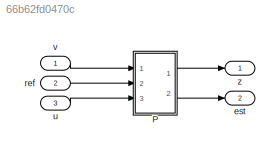
MODEL slx_66b62fd0470c
KIND model
CONFIG AbsTol = auto
CONFIG EnableMultiTasking = off
CONFIG FixedStep = auto
CONFIG MaxStep = auto
CONFIG MinStep = auto
CONFIG RelTol = 1e-3
CONFIG SampleTimeConstraint = Unconstrained
CONFIG Solver = VariableStepAuto
CONFIG SolverName = VariableStepAuto
CONFIG StartTime = 0.0
CONFIG StopTime = 10.0
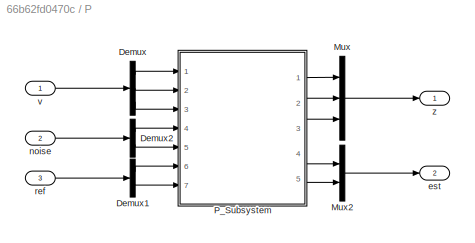
BLOCK [SubSystem] P
  Ports = [3, 2]
  RequestExecContextInheritance = off
BLOCK [Demux] P/Demux
  DisplayOption = bar
  Outputs = 3
  Ports = [1, 3]
BLOCK [Demux] P/Demux1
  DisplayOption = bar
  Outputs = 2
  Ports = [1, 2]
BLOCK [Demux] P/Demux2
  DisplayOption = bar
  Outputs = 2
  Ports = [1, 2]
BLOCK [Mux] P/Mux
  DisplayOption = bar
  Inputs = 3
  Ports = [3, 1]
BLOCK [Mux] P/Mux2
  DisplayOption = bar
  Inputs = 2
  Ports = [2, 1]
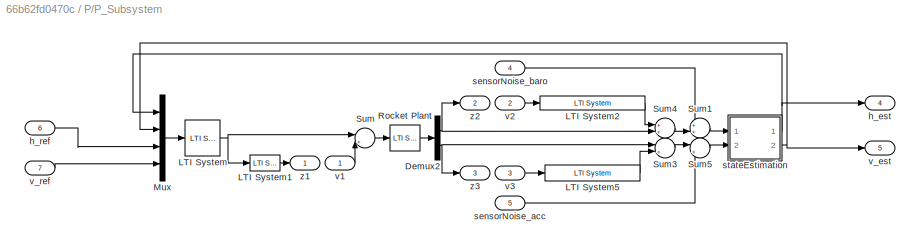
BLOCK [SubSystem] P/P_Subsystem
  Ports = [7, 5]
  RequestExecContextInheritance = off
BLOCK [Demux] P/P_Subsystem/Demux2
  DisplayOption = bar
  Outputs = 2
  Ports = [1, 2]
BLOCK [Reference] P/P_Subsystem/LTI System  REF=cstblocks/LTI System
  Ports = [1, 1]
  SourceBlock = cstblocks/LTI System
  SourceProductBaseCode = CT
  SourceProductName = Control System Toolbox
  SourceType = LTI Block
BLOCK [Reference] P/P_Subsystem/LTI System1  REF=cstblocks/LTI System
  Ports = [1, 1]
  SourceBlock = cstblocks/LTI System
  SourceProductBaseCode = CT
  SourceProductName = Control System Toolbox
  SourceType = LTI Block
BLOCK [Reference] P/P_Subsystem/LTI System2  REF=cstblocks/LTI System
  Ports = [1, 1]
  SourceBlock = cstblocks/LTI System
  SourceProductBaseCode = CT
  SourceProductName = Control System Toolbox
  SourceType = LTI Block
BLOCK [Reference] P/P_Subsystem/LTI System5  REF=cstblocks/LTI System
  Ports = [1, 1]
  SourceBlock = cstblocks/LTI System
  SourceProductBaseCode = CT
  SourceProductName = Control System Toolbox
  SourceType = LTI Block
BLOCK [Mux] P/P_Subsystem/Mux
  DisplayOption = bar
  Ports = [4, 1]
BLOCK [Reference] P/P_Subsystem/Rocket Plant  REF=cstblocks/LTI System
  Ports = [1, 1]
  SourceBlock = cstblocks/LTI System
  SourceProductBaseCode = CT
  SourceProductName = Control System Toolbox
  SourceType = LTI Block
BLOCK [Sum] P/P_Subsystem/Sum
  IconShape = round
  InputSameDT = off
  Inputs = |++
  OutDataTypeStr = Inherit: Inherit via internal rule
  OutMax = 1
  OutMin = 0
  Ports = [2, 1]
  SaturateOnIntegerOverflow = off
BLOCK [Sum] P/P_Subsystem/Sum1
  IconShape = round
  InputSameDT = off
  Inputs = ++|
  OutDataTypeStr = Inherit: Inherit via internal rule
  OutMax = 1
  OutMin = 0
  Ports = [2, 1]
  SaturateOnIntegerOverflow = off
BLOCK [Sum] P/P_Subsystem/Sum3
  IconShape = round
  InputSameDT = off
  Inputs = |++
  OutDataTypeStr = Inherit: Inherit via internal rule
  OutMax = 1
  OutMin = 0
  Ports = [2, 1]
  SaturateOnIntegerOverflow = off
BLOCK [Sum] P/P_Subsystem/Sum4
  IconShape = round
  InputSameDT = off
  Inputs = ++|
  OutDataTypeStr = Inherit: Inherit via internal rule
  OutMax = 1
  OutMin = 0
  Ports = [2, 1]
  SaturateOnIntegerOverflow = off
BLOCK [Sum] P/P_Subsystem/Sum5
  IconShape = round
  InputSameDT = off
  Inputs = |++
  OutDataTypeStr = Inherit: Inherit via internal rule
  OutMax = 1
  OutMin = 0
  Ports = [2, 1]
  SaturateOnIntegerOverflow = off
BLOCK [Outport] P/P_Subsystem/h_est
  IconDisplay = Port number
  Port = 4
BLOCK [Inport] P/P_Subsystem/h_ref
  IconDisplay = Port number
  Port = 6
BLOCK [Inport] P/P_Subsystem/sensorNoise_acc
  IconDisplay = Port number
  Port = 5
BLOCK [Inport] P/P_Subsystem/sensorNoise_baro
  IconDisplay = Port number
  Port = 4
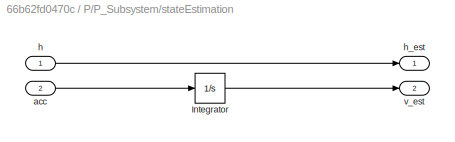
BLOCK [SubSystem] P/P_Subsystem/stateEstimation
  Ports = [2, 2]
  RequestExecContextInheritance = off
BLOCK [Integrator] P/P_Subsystem/stateEstimation/Integrator
  Ports = [1, 1]
BLOCK [Inport] P/P_Subsystem/stateEstimation/acc
  IconDisplay = Port number
  Port = 2
BLOCK [Inport] P/P_Subsystem/stateEstimation/h
  IconDisplay = Port number
BLOCK [Outport] P/P_Subsystem/stateEstimation/h_est
  IconDisplay = Port number
BLOCK [Outport] P/P_Subsystem/stateEstimation/v_est
  IconDisplay = Port number
  Port = 2
BLOCK [Inport] P/P_Subsystem/v1
  IconDisplay = Port number
BLOCK [Inport] P/P_Subsystem/v2
  IconDisplay = Port number
  Port = 2
BLOCK [Inport] P/P_Subsystem/v3
  IconDisplay = Port number
  Port = 3
BLOCK [Outport] P/P_Subsystem/v_est
  IconDisplay = Port number
  Port = 5
BLOCK [Inport] P/P_Subsystem/v_ref
  IconDisplay = Port number
  Port = 7
BLOCK [Outport] P/P_Subsystem/z1
  IconDisplay = Port number
BLOCK [Outport] P/P_Subsystem/z2
  IconDisplay = Port number
  Port = 2
BLOCK [Outport] P/P_Subsystem/z3
  IconDisplay = Port number
  Port = 3
BLOCK [Outport] P/est
  IconDisplay = Port number
  Port = 2
BLOCK [Inport] P/noise
  IconDisplay = Port number
  Port = 2
BLOCK [Inport] P/ref
  IconDisplay = Port number
  Port = 3
BLOCK [Inport] P/v
  IconDisplay = Port number
BLOCK [Outport] P/z
  IconDisplay = Port number
BLOCK [Outport] est
  IconDisplay = Port number
  Port = 2
BLOCK [Inport] ref
  IconDisplay = Port number
  Port = 2
BLOCK [Inport] u
  IconDisplay = Port number
  Port = 3
BLOCK [Inport] v
  IconDisplay = Port number
BLOCK [Outport] z
  IconDisplay = Port number
LINE P/Demux1:1 -> P/P_Subsystem:6
LINE P/Demux1:2 -> P/P_Subsystem:7
LINE P/Demux2:1 -> P/P_Subsystem:4
LINE P/Demux2:2 -> P/P_Subsystem:5
LINE P/Demux:1 -> P/P_Subsystem:1
LINE P/Demux:2 -> P/P_Subsystem:2
LINE P/Demux:3 -> P/P_Subsystem:3
LINE P/Mux2:1 -> P/est:1
LINE P/Mux:1 -> P/z:1
NET P/P_Subsystem/Demux2:1 -> P/P_Subsystem/Sum4:2, P/P_Subsystem/z2:1
NET P/P_Subsystem/Demux2:2 -> P/P_Subsystem/Sum3:1, P/P_Subsystem/z3:1
LINE P/P_Subsystem/LTI System1:1 -> P/P_Subsystem/z1:1
LINE P/P_Subsystem/LTI System2:1 -> P/P_Subsystem/Sum4:1
LINE P/P_Subsystem/LTI System5:1 -> P/P_Subsystem/Sum3:2
NET P/P_Subsystem/LTI System:1 -> P/P_Subsystem/LTI System1:1, P/P_Subsystem/Sum:1
LINE P/P_Subsystem/Mux:1 -> P/P_Subsystem/LTI System:1
LINE P/P_Subsystem/Rocket Plant:1 -> P/P_Subsystem/Demux2:1
LINE P/P_Subsystem/Sum1:1 -> P/P_Subsystem/stateEstimation:1
LINE P/P_Subsystem/Sum3:1 -> P/P_Subsystem/Sum5:1
LINE P/P_Subsystem/Sum4:1 -> P/P_Subsystem/Sum1:2
LINE P/P_Subsystem/Sum5:1 -> P/P_Subsystem/stateEstimation:2
LINE P/P_Subsystem/Sum:1 -> P/P_Subsystem/Rocket Plant:1
LINE P/P_Subsystem/h_ref:1 -> P/P_Subsystem/Mux:3
LINE P/P_Subsystem/sensorNoise_acc:1 -> P/P_Subsystem/Sum5:2
LINE P/P_Subsystem/sensorNoise_baro:1 -> P/P_Subsystem/Sum1:1
LINE P/P_Subsystem/stateEstimation/Integrator:1 -> P/P_Subsystem/stateEstimation/v_est:1
LINE P/P_Subsystem/stateEstimation/acc:1 -> P/P_Subsystem/stateEstimation/Integrator:1
LINE P/P_Subsystem/stateEstimation/h:1 -> P/P_Subsystem/stateEstimation/h_est:1
NET P/P_Subsystem/stateEstimation:1 -> P/P_Subsystem/Mux:1, P/P_Subsystem/h_est:1
NET P/P_Subsystem/stateEstimation:2 -> P/P_Subsystem/Mux:2, P/P_Subsystem/v_est:1
LINE P/P_Subsystem/v1:1 -> P/P_Subsystem/Sum:2
LINE P/P_Subsystem/v2:1 -> P/P_Subsystem/LTI System2:1
LINE P/P_Subsystem/v3:1 -> P/P_Subsystem/LTI System5:1
LINE P/P_Subsystem/v_ref:1 -> P/P_Subsystem/Mux:4
LINE P/P_Subsystem:1 -> P/Mux:1
LINE P/P_Subsystem:2 -> P/Mux:2
LINE P/P_Subsystem:3 -> P/Mux:3
LINE P/P_Subsystem:4 -> P/Mux2:1
LINE P/P_Subsystem:5 -> P/Mux2:2
LINE P/noise:1 -> P/Demux2:1
LINE P/ref:1 -> P/Demux1:1
LINE P/v:1 -> P/Demux:1
LINE P:1 -> z:1
LINE P:2 -> est:1
LINE ref:1 -> P:2
LINE u:1 -> P:3
LINE v:1 -> P:1
note: NET lines group one-source signal fan-out (src -> all destinations, sorted); 1:1 wires keep LINE
